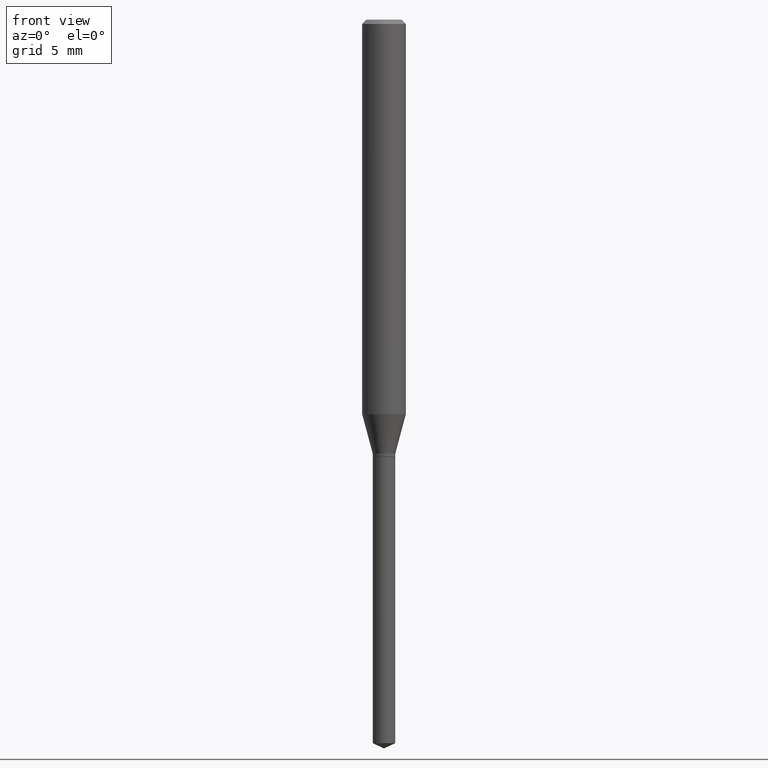
[diagram: clean part render]
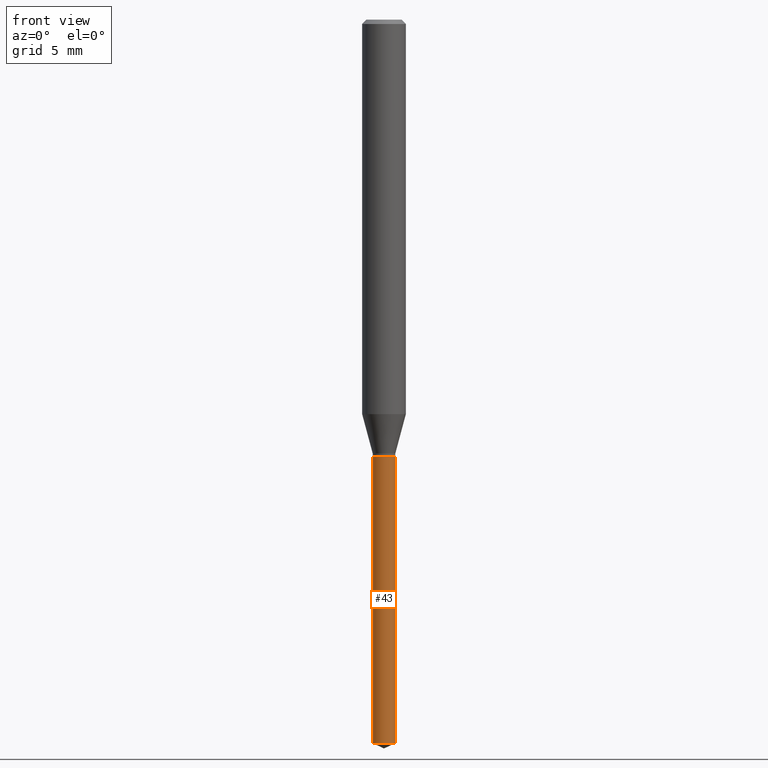
[diagram: same view with one face highlighted and labeled with its STEP entity id]
A machine part, front view. The second image highlights one B-rep face of the part: STEP entity #43.
In plain terms, the highlighted cylindrical surface (edge-blend (fillet) strip) has radius 0.7747 mm, axis along (-0, 0, 1).
Its self-contained STEP definition (entity closure, byte-faithful):
#4 = CARTESIAN_POINT ( 'NONE',  ( 0.03049999999999999586, -4.338514711646492641E-15, -1.181600000000000206 ) ) ;
#27 = DIRECTION ( 'NONE',  ( -2.445468806185136877E-29, 3.491481338843145188E-15, 1.000000000000000000 ) ) ;
#34 = DIRECTION ( 'NONE',  ( -2.445468806185136597E-29, 3.491481338843145583E-15, 1.000000000000000000 ) ) ;
#43 = ADVANCED_FACE ( 'NONE', ( #433 ), #431, .T. ) ;
#44 = CIRCLE ( 'NONE', #283, 0.03049999999999999586 ) ;
#58 = CIRCLE ( 'NONE', #392, 0.03049999999999999586 ) ;
#93 = VERTEX_POINT ( 'NONE', #332 ) ;
#95 = CARTESIAN_POINT ( 'NONE',  ( 0.03049999999999999586, -7.038049931010047308E-15, -1.954777616426272902 ) ) ;
#98 = ORIENTED_EDGE ( 'NONE', *, *, #406, .F. ) ;
#105 = VERTEX_POINT ( 'NONE', #95 ) ;
#106 = CARTESIAN_POINT ( 'NONE',  ( -0.03049999999999999586, -3.908818815570230173E-15, -1.181599999999999984 ) ) ;
#141 = DIRECTION ( 'NONE',  ( 1.000000000000000000, -6.982962677686269866E-15, 0.000000000000000000 ) ) ;
#158 = VECTOR ( 'NONE', #455, 39.37007874015748143 ) ;
#169 = ORIENTED_EDGE ( 'NONE', *, *, #340, .F. ) ;
#175 = EDGE_LOOP ( 'NONE', ( #169, #381, #447, #98 ) ) ;
#191 = DIRECTION ( 'NONE',  ( 1.000000000000000000, -6.982962677686254089E-15, 0.000000000000000000 ) ) ;
#201 = EDGE_CURVE ( 'NONE', #93, #105, #58, .T. ) ;
#210 = VERTEX_POINT ( 'NONE', #261 ) ;
#237 = EDGE_CURVE ( 'NONE', #105, #289, #308, .T. ) ;
#244 = DIRECTION ( 'NONE',  ( 1.000000000000000000, -6.982962677686269866E-15, 0.000000000000000000 ) ) ;
#261 = CARTESIAN_POINT ( 'NONE',  ( -0.03049999999999999586, -5.258586425252008690E-15, -1.181600000000000206 ) ) ;
#283 = AXIS2_PLACEMENT_3D ( 'NONE', #344, #341, #141 ) ;
#289 = VERTEX_POINT ( 'NONE', #4 ) ;
#308 = LINE ( 'NONE', #374, #461 ) ;
#332 = CARTESIAN_POINT ( 'NONE',  ( -0.03049999999999999586, -6.608354034933785630E-15, -1.954777616426272902 ) ) ;
#340 = EDGE_CURVE ( 'NONE', #93, #210, #485, .T. ) ;
#341 = DIRECTION ( 'NONE',  ( -2.445468806185136597E-29, 3.491481338843145583E-15, 1.000000000000000000 ) ) ;
#344 = CARTESIAN_POINT ( 'NONE',  ( 2.889565941388357678E-29, -4.125534349977061317E-15, -1.181600000000000206 ) ) ;
#352 = AXIS2_PLACEMENT_3D ( 'NONE', #465, #399, #244 ) ;
#374 = CARTESIAN_POINT ( 'NONE',  ( 0.03049999999999999586, -4.338514711646491852E-15, -1.181599999999999984 ) ) ;
#381 = ORIENTED_EDGE ( 'NONE', *, *, #201, .T. ) ;
#392 = AXIS2_PLACEMENT_3D ( 'NONE', #409, #34, #191 ) ;
#399 = DIRECTION ( 'NONE',  ( -2.445468806185136597E-29, 3.491481338843145583E-15, 1.000000000000000000 ) ) ;
#406 = EDGE_CURVE ( 'NONE', #210, #289, #44, .T. ) ;
#409 = CARTESIAN_POINT ( 'NONE',  ( 4.780347683999384122E-29, -6.825069569340615984E-15, -1.954777616426272902 ) ) ;
#431 = CYLINDRICAL_SURFACE ( 'NONE', #352, 0.03049999999999999586 ) ;
#433 = FACE_OUTER_BOUND ( 'NONE', #175, .T. ) ;
#447 = ORIENTED_EDGE ( 'NONE', *, *, #237, .T. ) ;
#455 = DIRECTION ( 'NONE',  ( -2.445468806185136877E-29, 3.491481338843145188E-15, 1.000000000000000000 ) ) ;
#461 = VECTOR ( 'NONE', #27, 39.37007874015748143 ) ;
#465 = CARTESIAN_POINT ( 'NONE',  ( 2.889565941388357118E-29, -4.125534349977060528E-15, -1.181599999999999984 ) ) ;
#485 = LINE ( 'NONE', #106, #158 ) ;